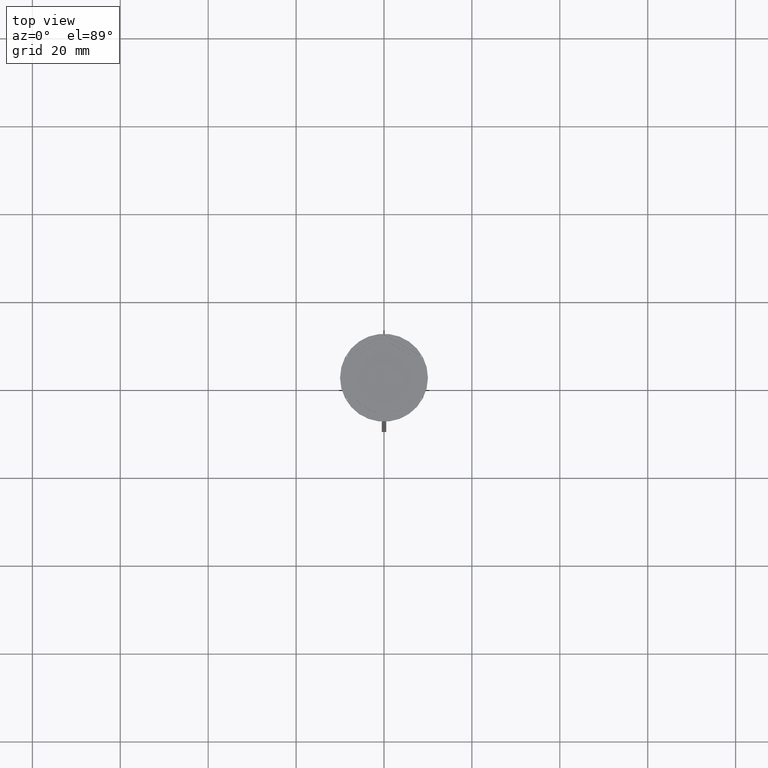
[diagram: clean part render]
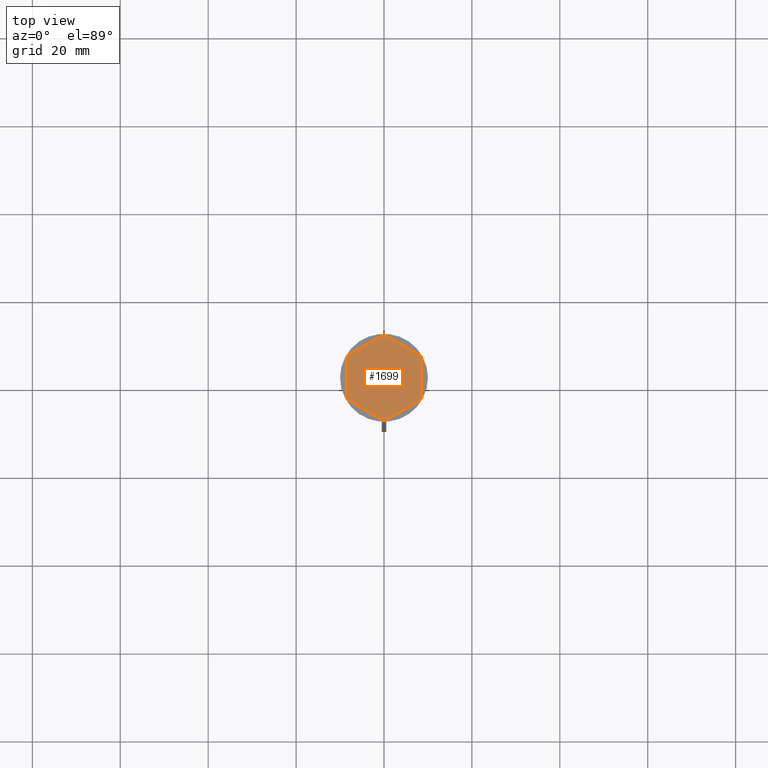
[diagram: same view with one face highlighted and labeled with its STEP entity id]
A machine part, top view. The second image highlights one B-rep face of the part: STEP entity #1699.
In plain terms, the highlighted planar face has unit normal (0, 0, 1).
Its self-contained STEP definition (entity closure, byte-faithful):
#4 = EDGE_CURVE ( 'NONE', #2357, #367, #647, .T. ) ;
#11 = FACE_OUTER_BOUND ( 'NONE', #1498, .T. ) ;
#13 = CARTESIAN_POINT ( 'NONE',  ( 8.500000000000000000, -4.673328578219146934, -1.000000000000000000 ) ) ;
#22 = CARTESIAN_POINT ( 'NONE',  ( 0.000000000000000000, 0.000000000000000000, -1.000000000000000000 ) ) ;
#33 = LINE ( 'NONE', #1677, #55 ) ;
#49 = CARTESIAN_POINT ( 'NONE',  ( -7.500000000000000000, 2.783882181415010759, -1.000000000000000888 ) ) ;
#50 = CIRCLE ( 'NONE', #178, 8.000000000000000000 ) ;
#55 = VECTOR ( 'NONE', #1703, 1000.000000000000000 ) ;
#62 = VERTEX_POINT ( 'NONE', #1111 ) ;
#64 = EDGE_LOOP ( 'NONE', ( #420, #2531 ) ) ;
#79 = CARTESIAN_POINT ( 'NONE',  ( 0.000000000000000000, 0.000000000000000000, -1.000000000000000000 ) ) ;
#95 = CIRCLE ( 'NONE', #444, 8.000000000000000000 ) ;
#117 = CARTESIAN_POINT ( 'NONE',  ( 0.000000000000000000, 0.000000000000000000, -1.000000000000000000 ) ) ;
#127 = ORIENTED_EDGE ( 'NONE', *, *, #1556, .F. ) ;
#151 = DIRECTION ( 'NONE',  ( -0.000000000000000000, -0.000000000000000000, -1.000000000000000000 ) ) ;
#165 = VERTEX_POINT ( 'NONE', #1874 ) ;
#170 = EDGE_CURVE ( 'NONE', #1576, #732, #1649, .T. ) ;
#178 = AXIS2_PLACEMENT_3D ( 'NONE', #1471, #253, #2490 ) ;
#199 = CARTESIAN_POINT ( 'NONE',  ( 0.000000000000000000, 0.000000000000000000, -1.000000000000000000 ) ) ;
#201 = EDGE_LOOP ( 'NONE', ( #850, #2241, #2150 ) ) ;
#204 = CARTESIAN_POINT ( 'NONE',  ( -8.500000000000000000, 4.907477288111818936, -1.000000000000000000 ) ) ;
#219 = CIRCLE ( 'NONE', #2384, 9.699999999999990408 ) ;
#225 = ORIENTED_EDGE ( 'NONE', *, *, #1641, .F. ) ;
#229 = CARTESIAN_POINT ( 'NONE',  ( -7.500000000000000000, -4.330127018922193649, -1.000000000000000888 ) ) ;
#235 = EDGE_CURVE ( 'NONE', #1956, #1047, #1628, .T. ) ;
#241 = DIRECTION ( 'NONE',  ( 0.000000000000000000, 0.000000000000000000, 1.000000000000000000 ) ) ;
#251 = VERTEX_POINT ( 'NONE', #1461 ) ;
#253 = DIRECTION ( 'NONE',  ( 0.000000000000000000, 0.000000000000000000, 1.000000000000000000 ) ) ;
#258 = EDGE_LOOP ( 'NONE', ( #225, #1864 ) ) ;
#259 = EDGE_CURVE ( 'NONE', #1691, #2115, #1709, .T. ) ;
#262 = AXIS2_PLACEMENT_3D ( 'NONE', #199, #2277, #987 ) ;
#268 = VERTEX_POINT ( 'NONE', #713 ) ;
#289 = LINE ( 'NONE', #1920, #1683 ) ;
#300 = EDGE_CURVE ( 'NONE', #1576, #1652, #2072, .T. ) ;
#316 = VERTEX_POINT ( 'NONE', #2556 ) ;
#328 = DIRECTION ( 'NONE',  ( -2.003086131649545704E-16, -1.000000000000000000, 0.000000000000000000 ) ) ;
#341 = CARTESIAN_POINT ( 'NONE',  ( 1.339087309751760380, 7.887131619090794743, -1.000000000000000888 ) ) ;
#355 = VERTEX_POINT ( 'NONE', #1132 ) ;
#367 = VERTEX_POINT ( 'NONE', #769 ) ;
#386 = DIRECTION ( 'NONE',  ( 0.000000000000000000, 0.000000000000000000, 1.000000000000000000 ) ) ;
#406 = LINE ( 'NONE', #1015, #1041 ) ;
#409 = DIRECTION ( 'NONE',  ( -0.000000000000000000, -0.000000000000000000, -1.000000000000000000 ) ) ;
#420 = ORIENTED_EDGE ( 'NONE', *, *, #858, .F. ) ;
#431 = CARTESIAN_POINT ( 'NONE',  ( 8.729740977282959667E-16, -9.814954576223637872, -1.000000000000000000 ) ) ;
#444 = AXIS2_PLACEMENT_3D ( 'NONE', #22, #241, #1257 ) ;
#453 = CARTESIAN_POINT ( 'NONE',  ( -8.297221268969593666, 5.024551643058155825, -1.000000000000000000 ) ) ;
#479 = DIRECTION ( 'NONE',  ( 0.000000000000000000, 0.000000000000000000, 1.000000000000000000 ) ) ;
#487 = DIRECTION ( 'NONE',  ( 1.000000000000000000, 0.000000000000000000, 0.000000000000000000 ) ) ;
#495 = DIRECTION ( 'NONE',  ( -0.000000000000000000, -0.000000000000000000, -1.000000000000000000 ) ) ;
#513 = EDGE_CURVE ( 'NONE', #1191, #165, #2539, .T. ) ;
#525 = CIRCLE ( 'NONE', #1470, 9.699999999999990408 ) ;
#530 = DIRECTION ( 'NONE',  ( 0.000000000000000000, 0.000000000000000000, 1.000000000000000000 ) ) ;
#558 = AXIS2_PLACEMENT_3D ( 'NONE', #1178, #2002, #487 ) ;
#585 = CARTESIAN_POINT ( 'NONE',  ( 0.000000000000000000, 0.000000000000000000, -1.000000000000000000 ) ) ;
#606 = DIRECTION ( 'NONE',  ( 1.000000000000000000, 0.000000000000000000, 0.000000000000000000 ) ) ;
#611 = CIRCLE ( 'NONE', #956, 9.699999999999990408 ) ;
#620 = EDGE_CURVE ( 'NONE', #1679, #880, #1629, .T. ) ;
#629 = LINE ( 'NONE', #431, #1763 ) ;
#647 = CIRCLE ( 'NONE', #2157, 8.000000000000000000 ) ;
#653 = CIRCLE ( 'NONE', #2124, 8.000000000000000000 ) ;
#691 = CARTESIAN_POINT ( 'NONE',  ( 6.160912690248237844, 5.103249437675785316, -1.000000000000000888 ) ) ;
#694 = AXIS2_PLACEMENT_3D ( 'NONE', #2452, #1439, #1808 ) ;
#695 = DIRECTION ( 'NONE',  ( -0.8660254037844388186, 0.4999999999999997224, 0.000000000000000000 ) ) ;
#698 = VECTOR ( 'NONE', #328, 1000.000000000000000 ) ;
#710 = ORIENTED_EDGE ( 'NONE', *, *, #170, .T. ) ;
#713 = CARTESIAN_POINT ( 'NONE',  ( 8.297221268969593666, 5.024551643058155825, -1.000000000000000000 ) ) ;
#732 = VERTEX_POINT ( 'NONE', #1352 ) ;
#769 = CARTESIAN_POINT ( 'NONE',  ( -8.000000000000000000, 0.000000000000000000, -1.000000000000000000 ) ) ;
#771 = VECTOR ( 'NONE', #2270, 999.9999999999998863 ) ;
#790 = DIRECTION ( 'NONE',  ( 1.000000000000000000, 0.000000000000000000, 0.000000000000000000 ) ) ;
#795 = CARTESIAN_POINT ( 'NONE',  ( -8.500000000000000000, 4.673328578219146934, -1.000000000000000000 ) ) ;
#798 = EDGE_CURVE ( 'NONE', #355, #1339, #1302, .T. ) ;
#811 = EDGE_CURVE ( 'NONE', #1037, #1373, #1368, .T. ) ;
#827 = VECTOR ( 'NONE', #2097, 1000.000000000000114 ) ;
#832 = CARTESIAN_POINT ( 'NONE',  ( 8.500000000000000000, 4.907477288111819824, -1.000000000000000000 ) ) ;
#837 = LINE ( 'NONE', #229, #827 ) ;
#850 = ORIENTED_EDGE ( 'NONE', *, *, #4, .F. ) ;
#858 = EDGE_CURVE ( 'NONE', #1373, #1037, #2459, .T. ) ;
#880 = VERTEX_POINT ( 'NONE', #1621 ) ;
#906 = PLANE ( 'NONE',  #2301 ) ;
#911 = CARTESIAN_POINT ( 'NONE',  ( -1.339087309751766819, -7.887131619090794743, -1.000000000000000888 ) ) ;
#927 = EDGE_CURVE ( 'NONE', #251, #2259, #406, .T. ) ;
#939 = ORIENTED_EDGE ( 'NONE', *, *, #1591, .F. ) ;
#956 = AXIS2_PLACEMENT_3D ( 'NONE', #1042, #409, #606 ) ;
#976 = DIRECTION ( 'NONE',  ( -0.8660254037844387076, -0.4999999999999997780, 0.000000000000000000 ) ) ;
#987 = DIRECTION ( 'NONE',  ( 1.000000000000000000, 0.000000000000000000, 0.000000000000000000 ) ) ;
#1015 = CARTESIAN_POINT ( 'NONE',  ( -8.500000000000000000, -4.907477288111819824, -1.000000000000000000 ) ) ;
#1037 = VERTEX_POINT ( 'NONE', #341 ) ;
#1041 = VECTOR ( 'NONE', #1833, 1000.000000000000114 ) ;
#1042 = CARTESIAN_POINT ( 'NONE',  ( 0.000000000000000000, 0.000000000000000000, -1.000000000000000000 ) ) ;
#1047 = VERTEX_POINT ( 'NONE', #2635 ) ;
#1055 = EDGE_CURVE ( 'NONE', #251, #732, #525, .T. ) ;
#1058 = CARTESIAN_POINT ( 'NONE',  ( 1.339087309751762156, -7.887131619090794743, -1.000000000000000888 ) ) ;
#1105 = CARTESIAN_POINT ( 'NONE',  ( -7.500000000000000000, -2.783882181415010759, -1.000000000000000888 ) ) ;
#1106 = EDGE_CURVE ( 'NONE', #2457, #316, #653, .T. ) ;
#1111 = CARTESIAN_POINT ( 'NONE',  ( 8.500000000000000000, 4.673328578219146934, -1.000000000000000000 ) ) ;
#1124 = DIRECTION ( 'NONE',  ( 0.000000000000000000, 1.000000000000000000, 0.000000000000000000 ) ) ;
#1126 = DIRECTION ( 'NONE',  ( 0.000000000000000000, 0.000000000000000000, 1.000000000000000000 ) ) ;
#1129 = ORIENTED_EDGE ( 'NONE', *, *, #1986, .T. ) ;
#1132 = CARTESIAN_POINT ( 'NONE',  ( -6.160912690248237844, -5.103249437675787092, -1.000000000000000888 ) ) ;
#1141 = AXIS2_PLACEMENT_3D ( 'NONE', #1229, #1622, #1784 ) ;
#1166 = VECTOR ( 'NONE', #1953, 1000.000000000000000 ) ;
#1178 = CARTESIAN_POINT ( 'NONE',  ( 0.000000000000000000, 0.000000000000000000, -1.000000000000000000 ) ) ;
#1182 = ORIENTED_EDGE ( 'NONE', *, *, #2042, .T. ) ;
#1185 = CARTESIAN_POINT ( 'NONE',  ( 0.000000000000000000, 0.000000000000000000, -1.000000000000000000 ) ) ;
#1191 = VERTEX_POINT ( 'NONE', #13 ) ;
#1198 = ORIENTED_EDGE ( 'NONE', *, *, #1370, .F. ) ;
#1229 = CARTESIAN_POINT ( 'NONE',  ( 0.000000000000000000, 0.000000000000000000, -1.000000000000000000 ) ) ;
#1242 = FACE_BOUND ( 'NONE', #201, .T. ) ;
#1257 = DIRECTION ( 'NONE',  ( 1.000000000000000000, 0.000000000000000000, 0.000000000000000000 ) ) ;
#1295 = ORIENTED_EDGE ( 'NONE', *, *, #235, .F. ) ;
#1302 = CIRCLE ( 'NONE', #1594, 8.000000000000000000 ) ;
#1314 = DIRECTION ( 'NONE',  ( 1.000000000000000000, 2.486899575160350651E-14, 0.000000000000000000 ) ) ;
#1324 = ORIENTED_EDGE ( 'NONE', *, *, #620, .F. ) ;
#1336 = DIRECTION ( 'NONE',  ( 1.000000000000000000, 0.000000000000000000, 0.000000000000000000 ) ) ;
#1339 = VERTEX_POINT ( 'NONE', #911 ) ;
#1352 = CARTESIAN_POINT ( 'NONE',  ( -8.500000000000000000, -4.673328578219146934, -1.000000000000000000 ) ) ;
#1368 = LINE ( 'NONE', #2196, #1166 ) ;
#1370 = EDGE_CURVE ( 'NONE', #316, #2457, #2585, .T. ) ;
#1373 = VERTEX_POINT ( 'NONE', #691 ) ;
#1374 = AXIS2_PLACEMENT_3D ( 'NONE', #2522, #495, #1314 ) ;
#1391 = ORIENTED_EDGE ( 'NONE', *, *, #1106, .F. ) ;
#1404 = ORIENTED_EDGE ( 'NONE', *, *, #1635, .F. ) ;
#1420 = DIRECTION ( 'NONE',  ( 0.8660254037844385966, 0.5000000000000000000, 0.000000000000000000 ) ) ;
#1439 = DIRECTION ( 'NONE',  ( 0.000000000000000000, 0.000000000000000000, 1.000000000000000000 ) ) ;
#1461 = CARTESIAN_POINT ( 'NONE',  ( -8.297221268969593666, -5.024551643058157602, -1.000000000000000000 ) ) ;
#1470 = AXIS2_PLACEMENT_3D ( 'NONE', #1185, #151, #2446 ) ;
#1471 = CARTESIAN_POINT ( 'NONE',  ( 0.000000000000000000, 0.000000000000000000, -1.000000000000000000 ) ) ;
#1498 = EDGE_LOOP ( 'NONE', ( #2315, #127, #1129, #1324, #2507, #2140, #710, #1782, #2000, #2010, #1182, #2265 ) ) ;
#1526 = LINE ( 'NONE', #2354, #2634 ) ;
#1556 = EDGE_CURVE ( 'NONE', #268, #62, #219, .T. ) ;
#1568 = CARTESIAN_POINT ( 'NONE',  ( 7.500000000000000000, -2.783882181415009427, -1.000000000000000888 ) ) ;
#1576 = VERTEX_POINT ( 'NONE', #795 ) ;
#1591 = EDGE_CURVE ( 'NONE', #1339, #355, #837, .T. ) ;
#1594 = AXIS2_PLACEMENT_3D ( 'NONE', #117, #1126, #1336 ) ;
#1621 = CARTESIAN_POINT ( 'NONE',  ( 0.2027787310304000890, 9.697880221277303647, -1.000000000000000000 ) ) ;
#1622 = DIRECTION ( 'NONE',  ( 0.000000000000000000, 0.000000000000000000, 1.000000000000000000 ) ) ;
#1627 = VECTOR ( 'NONE', #1885, 1000.000000000000000 ) ;
#1628 = LINE ( 'NONE', #2461, #771 ) ;
#1629 = CIRCLE ( 'NONE', #1374, 9.699999999999990408 ) ;
#1635 = EDGE_CURVE ( 'NONE', #1047, #1956, #95, .T. ) ;
#1641 = EDGE_CURVE ( 'NONE', #2115, #1691, #50, .T. ) ;
#1642 = FACE_BOUND ( 'NONE', #2386, .T. ) ;
#1647 = VERTEX_POINT ( 'NONE', #2316 ) ;
#1648 = CIRCLE ( 'NONE', #1141, 8.000000000000000000 ) ;
#1649 = LINE ( 'NONE', #204, #1627 ) ;
#1652 = VERTEX_POINT ( 'NONE', #453 ) ;
#1666 = DIRECTION ( 'NONE',  ( 1.000000000000000000, 0.000000000000000000, 0.000000000000000000 ) ) ;
#1677 = CARTESIAN_POINT ( 'NONE',  ( 8.500000000000000000, -4.907477288111818936, -1.000000000000000000 ) ) ;
#1679 = VERTEX_POINT ( 'NONE', #2454 ) ;
#1683 = VECTOR ( 'NONE', #2149, 1000.000000000000114 ) ;
#1685 = EDGE_CURVE ( 'NONE', #1647, #2259, #611, .T. ) ;
#1691 = VERTEX_POINT ( 'NONE', #1835 ) ;
#1699 = ADVANCED_FACE ( 'NONE', ( #2664, #1642, #2468, #2276, #1242, #1853, #11 ), #906, .T. ) ;
#1703 = DIRECTION ( 'NONE',  ( 0.000000000000000000, 1.000000000000000000, 0.000000000000000000 ) ) ;
#1709 = LINE ( 'NONE', #2352, #2195 ) ;
#1717 = EDGE_CURVE ( 'NONE', #1679, #1652, #289, .T. ) ;
#1720 = EDGE_CURVE ( 'NONE', #2022, #2357, #1526, .T. ) ;
#1728 = CARTESIAN_POINT ( 'NONE',  ( -0.2027787310304044188, -9.697880221277303647, -1.000000000000000000 ) ) ;
#1729 = DIRECTION ( 'NONE',  ( 1.000000000000000000, 0.000000000000000000, -0.000000000000000000 ) ) ;
#1736 = ORIENTED_EDGE ( 'NONE', *, *, #798, .F. ) ;
#1745 = EDGE_LOOP ( 'NONE', ( #1404, #1295 ) ) ;
#1763 = VECTOR ( 'NONE', #1420, 1000.000000000000227 ) ;
#1782 = ORIENTED_EDGE ( 'NONE', *, *, #1055, .F. ) ;
#1784 = DIRECTION ( 'NONE',  ( 1.000000000000000000, 0.000000000000000000, 0.000000000000000000 ) ) ;
#1808 = DIRECTION ( 'NONE',  ( 1.000000000000000000, 0.000000000000000000, 0.000000000000000000 ) ) ;
#1833 = DIRECTION ( 'NONE',  ( 0.8660254037844387076, -0.4999999999999997780, 0.000000000000000000 ) ) ;
#1835 = CARTESIAN_POINT ( 'NONE',  ( 6.160912690248236068, -5.103249437675787981, -1.000000000000000888 ) ) ;
#1853 = FACE_BOUND ( 'NONE', #1745, .T. ) ;
#1864 = ORIENTED_EDGE ( 'NONE', *, *, #259, .F. ) ;
#1874 = CARTESIAN_POINT ( 'NONE',  ( 8.297221268969593666, -5.024551643058152273, -1.000000000000000000 ) ) ;
#1885 = DIRECTION ( 'NONE',  ( 0.000000000000000000, -1.000000000000000000, 0.000000000000000000 ) ) ;
#1908 = CARTESIAN_POINT ( 'NONE',  ( 7.500000000000000000, -4.330127018922195425, -1.000000000000000888 ) ) ;
#1920 = CARTESIAN_POINT ( 'NONE',  ( 0.000000000000000000, 9.814954576223636096, -1.000000000000000000 ) ) ;
#1953 = DIRECTION ( 'NONE',  ( 0.8660254037844387076, -0.4999999999999998890, 0.000000000000000000 ) ) ;
#1956 = VERTEX_POINT ( 'NONE', #2648 ) ;
#1986 = EDGE_CURVE ( 'NONE', #268, #880, #2061, .T. ) ;
#1994 = EDGE_LOOP ( 'NONE', ( #1736, #939 ) ) ;
#1999 = CARTESIAN_POINT ( 'NONE',  ( 0.000000000000000000, 0.000000000000000000, -1.000000000000000000 ) ) ;
#2000 = ORIENTED_EDGE ( 'NONE', *, *, #927, .T. ) ;
#2002 = DIRECTION ( 'NONE',  ( -0.000000000000000000, -0.000000000000000000, -1.000000000000000000 ) ) ;
#2010 = ORIENTED_EDGE ( 'NONE', *, *, #1685, .F. ) ;
#2022 = VERTEX_POINT ( 'NONE', #1105 ) ;
#2042 = EDGE_CURVE ( 'NONE', #1647, #165, #629, .T. ) ;
#2061 = LINE ( 'NONE', #832, #2258 ) ;
#2072 = CIRCLE ( 'NONE', #558, 9.699999999999990408 ) ;
#2097 = DIRECTION ( 'NONE',  ( -0.8660254037844384856, 0.5000000000000002220, 0.000000000000000000 ) ) ;
#2115 = VERTEX_POINT ( 'NONE', #1058 ) ;
#2124 = AXIS2_PLACEMENT_3D ( 'NONE', #585, #386, #790 ) ;
#2140 = ORIENTED_EDGE ( 'NONE', *, *, #300, .F. ) ;
#2149 = DIRECTION ( 'NONE',  ( -0.8660254037844387076, -0.4999999999999997780, 0.000000000000000000 ) ) ;
#2150 = ORIENTED_EDGE ( 'NONE', *, *, #2211, .F. ) ;
#2157 = AXIS2_PLACEMENT_3D ( 'NONE', #79, #479, #1666 ) ;
#2195 = VECTOR ( 'NONE', #976, 1000.000000000000114 ) ;
#2196 = CARTESIAN_POINT ( 'NONE',  ( 7.500000000000001776, 4.330127018922192761, -1.000000000000000888 ) ) ;
#2211 = EDGE_CURVE ( 'NONE', #367, #2022, #1648, .T. ) ;
#2232 = DIRECTION ( 'NONE',  ( -0.000000000000000000, -0.000000000000000000, -1.000000000000000000 ) ) ;
#2241 = ORIENTED_EDGE ( 'NONE', *, *, #1720, .F. ) ;
#2258 = VECTOR ( 'NONE', #695, 1000.000000000000000 ) ;
#2259 = VERTEX_POINT ( 'NONE', #1728 ) ;
#2265 = ORIENTED_EDGE ( 'NONE', *, *, #513, .F. ) ;
#2270 = DIRECTION ( 'NONE',  ( 0.8660254037844387076, 0.5000000000000001110, -0.000000000000000000 ) ) ;
#2276 = FACE_BOUND ( 'NONE', #1994, .T. ) ;
#2277 = DIRECTION ( 'NONE',  ( -0.000000000000000000, -0.000000000000000000, -1.000000000000000000 ) ) ;
#2301 = AXIS2_PLACEMENT_3D ( 'NONE', #2544, #530, #1729 ) ;
#2315 = ORIENTED_EDGE ( 'NONE', *, *, #2356, .T. ) ;
#2316 = CARTESIAN_POINT ( 'NONE',  ( 0.2027787310304044188, -9.697880221277303647, -1.000000000000000000 ) ) ;
#2352 = CARTESIAN_POINT ( 'NONE',  ( -1.301042606982605321E-15, -8.660254037844387298, -1.000000000000000888 ) ) ;
#2354 = CARTESIAN_POINT ( 'NONE',  ( -7.500000000000000000, 4.330127018922190985, -1.000000000000000888 ) ) ;
#2356 = EDGE_CURVE ( 'NONE', #1191, #62, #33, .T. ) ;
#2357 = VERTEX_POINT ( 'NONE', #49 ) ;
#2384 = AXIS2_PLACEMENT_3D ( 'NONE', #1999, #2232, #2641 ) ;
#2386 = EDGE_LOOP ( 'NONE', ( #1391, #1198 ) ) ;
#2446 = DIRECTION ( 'NONE',  ( 1.000000000000000000, 0.000000000000000000, 0.000000000000000000 ) ) ;
#2452 = CARTESIAN_POINT ( 'NONE',  ( 0.000000000000000000, 0.000000000000000000, -1.000000000000000000 ) ) ;
#2454 = CARTESIAN_POINT ( 'NONE',  ( -0.2027787310304009494, 9.697880221277303647, -1.000000000000000000 ) ) ;
#2457 = VERTEX_POINT ( 'NONE', #1568 ) ;
#2459 = CIRCLE ( 'NONE', #694, 8.000000000000000000 ) ;
#2461 = CARTESIAN_POINT ( 'NONE',  ( 8.673617379884035472E-16, 8.660254037844385522, -1.000000000000000888 ) ) ;
#2468 = FACE_BOUND ( 'NONE', #258, .T. ) ;
#2490 = DIRECTION ( 'NONE',  ( 1.000000000000000000, 0.000000000000000000, 0.000000000000000000 ) ) ;
#2507 = ORIENTED_EDGE ( 'NONE', *, *, #1717, .T. ) ;
#2522 = CARTESIAN_POINT ( 'NONE',  ( 0.000000000000000000, 0.000000000000000000, -1.000000000000000000 ) ) ;
#2531 = ORIENTED_EDGE ( 'NONE', *, *, #811, .F. ) ;
#2539 = CIRCLE ( 'NONE', #262, 9.699999999999990408 ) ;
#2544 = CARTESIAN_POINT ( 'NONE',  ( 0.000000000000000000, 0.000000000000000000, -1.000000000000000000 ) ) ;
#2556 = CARTESIAN_POINT ( 'NONE',  ( 7.500000000000001776, 2.783882181415006762, -1.000000000000000888 ) ) ;
#2585 = LINE ( 'NONE', #1908, #698 ) ;
#2634 = VECTOR ( 'NONE', #1124, 1000.000000000000000 ) ;
#2635 = CARTESIAN_POINT ( 'NONE',  ( -1.339087309751759047, 7.887131619090796519, -1.000000000000000888 ) ) ;
#2641 = DIRECTION ( 'NONE',  ( 1.000000000000000000, 0.000000000000000000, 0.000000000000000000 ) ) ;
#2648 = CARTESIAN_POINT ( 'NONE',  ( -6.160912690248241397, 5.103249437675783540, -1.000000000000000888 ) ) ;
#2664 = FACE_BOUND ( 'NONE', #64, .T. ) ;